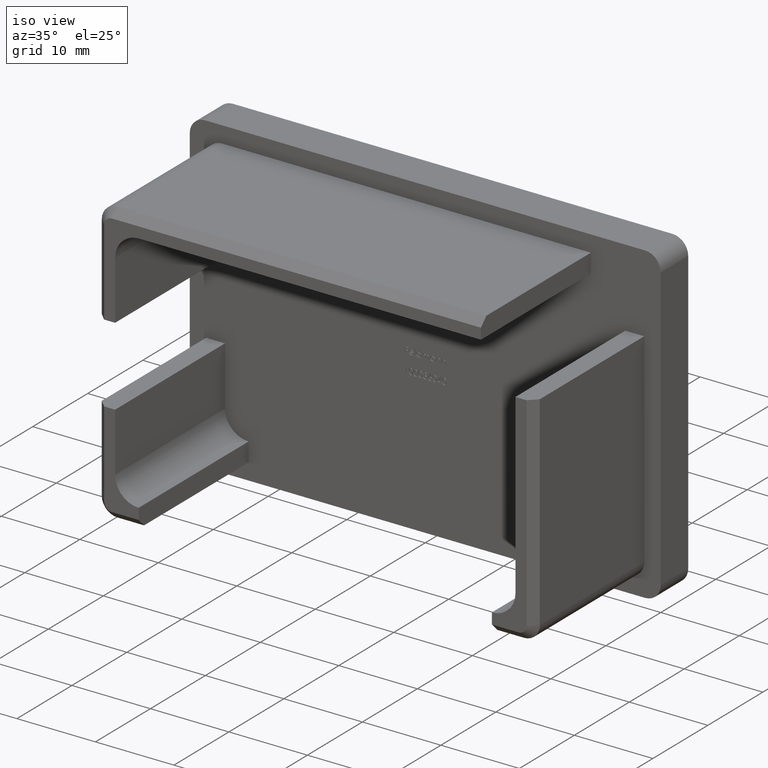
[diagram: clean part render]
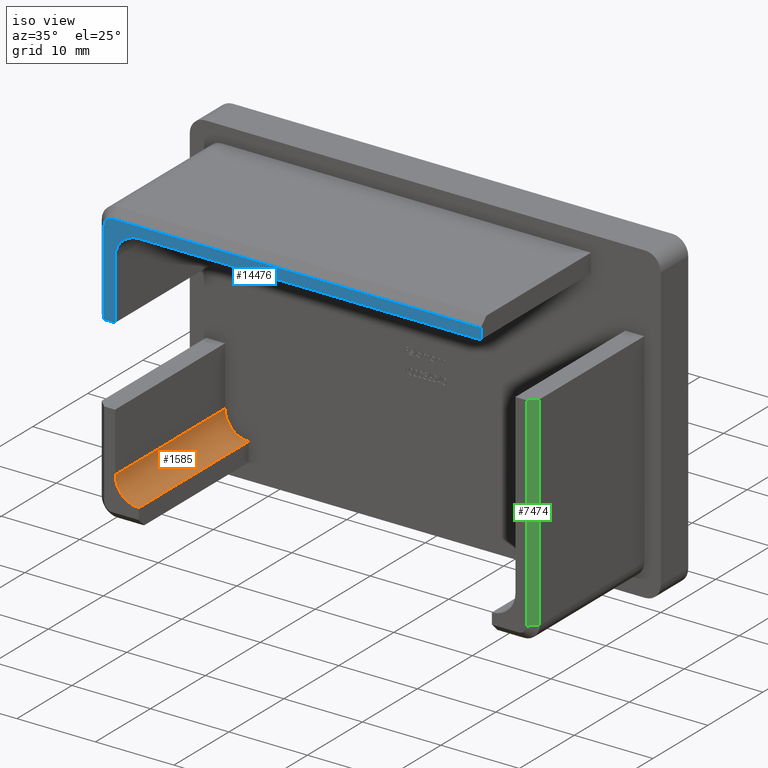
[diagram: same view with three faces highlighted in distinct colors, each labeled with its STEP entity id]
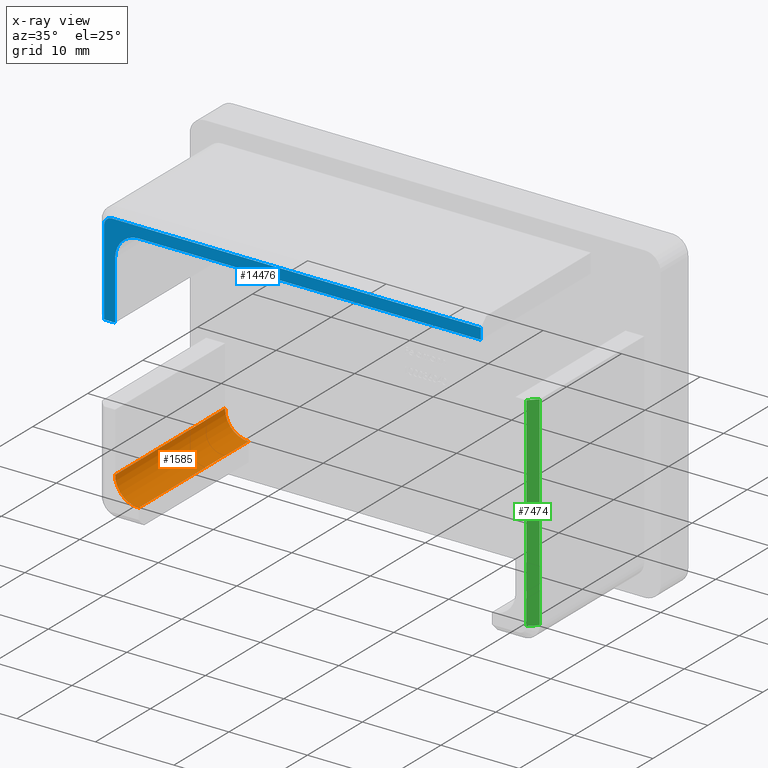
[diagram: x-ray of the same camera — body ghosted, the three highlighted faces saturated]
A machine part, iso view with three faces highlighted in distinct colors.
The next image is the same camera in x-ray (body ghosted, the three faces saturated) — at least one of them is partly hidden behind the body in this view.
Their STEP definitions:

[orange] entity #1585 — the highlighted cylindrical surface (edge-blend (fillet) strip) has radius 3 mm, axis along (0, -1, 0).
#919 = VERTEX_POINT ( 'NONE', #2322 ) ;
#936 = ORIENTED_EDGE ( 'NONE', *, *, #7920, .T. ) ;
#1585 = ADVANCED_FACE ( 'NONE', ( #15133 ), #3211, .F. ) ;
#1900 = AXIS2_PLACEMENT_3D ( 'NONE', #13488, #9935, #13442 ) ;
#2322 = CARTESIAN_POINT ( 'NONE',  ( -22.50000000000000000, 0.0000000000000000000, -15.50000000000000700 ) ) ;
#2651 = VECTOR ( 'NONE', #9239, 1000.000000000000000 ) ;
#2940 = DIRECTION ( 'NONE',  ( -0.0000000000000000000, 1.000000000000000000, -0.0000000000000000000 ) ) ;
#3142 = VERTEX_POINT ( 'NONE', #5018 ) ;
#3159 = AXIS2_PLACEMENT_3D ( 'NONE', #11376, #12372, #13659 ) ;
#3211 = CYLINDRICAL_SURFACE ( 'NONE', #11324, 2.999999999999999100 ) ;
#3710 = EDGE_CURVE ( 'NONE', #3142, #4677, #12547, .T. ) ;
#3783 = EDGE_LOOP ( 'NONE', ( #4156, #936, #14974, #14303 ) ) ;
#4156 = ORIENTED_EDGE ( 'NONE', *, *, #10167, .F. ) ;
#4677 = VERTEX_POINT ( 'NONE', #8477 ) ;
#5018 = CARTESIAN_POINT ( 'NONE',  ( -25.50000000000000400, -20.00000000000000000, -12.50000000000000700 ) ) ;
#7486 = CARTESIAN_POINT ( 'NONE',  ( -22.50000000000000000, -20.00000000000000000, -15.50000000000000700 ) ) ;
#7920 = EDGE_CURVE ( 'NONE', #8261, #919, #11378, .T. ) ;
#8261 = VERTEX_POINT ( 'NONE', #10594 ) ;
#8477 = CARTESIAN_POINT ( 'NONE',  ( -25.50000000000000400, 0.0000000000000000000, -12.50000000000000700 ) ) ;
#9239 = DIRECTION ( 'NONE',  ( 0.0000000000000000000, 1.000000000000000000, 0.0000000000000000000 ) ) ;
#9935 = DIRECTION ( 'NONE',  ( -0.0000000000000000000, 1.000000000000000000, 0.0000000000000000000 ) ) ;
#10167 = EDGE_CURVE ( 'NONE', #8261, #3142, #14835, .T. ) ;
#10594 = CARTESIAN_POINT ( 'NONE',  ( -22.50000000000000000, -20.00000000000000000, -15.50000000000000700 ) ) ;
#10851 = CARTESIAN_POINT ( 'NONE',  ( -22.50000000000000400, -20.00000000000000000, -12.50000000000000700 ) ) ;
#11324 = AXIS2_PLACEMENT_3D ( 'NONE', #10851, #12030, #14410 ) ;
#11376 = CARTESIAN_POINT ( 'NONE',  ( -22.50000000000000400, 0.0000000000000000000, -12.50000000000000700 ) ) ;
#11378 = LINE ( 'NONE', #7486, #14532 ) ;
#11407 = CIRCLE ( 'NONE', #3159, 2.999999999999999100 ) ;
#12030 = DIRECTION ( 'NONE',  ( 0.0000000000000000000, -1.000000000000000000, 0.0000000000000000000 ) ) ;
#12180 = EDGE_CURVE ( 'NONE', #4677, #919, #11407, .T. ) ;
#12372 = DIRECTION ( 'NONE',  ( -0.0000000000000000000, -1.000000000000000000, -0.0000000000000000000 ) ) ;
#12547 = LINE ( 'NONE', #13923, #2651 ) ;
#13442 = DIRECTION ( 'NONE',  ( 0.0000000000000000000, 0.0000000000000000000, -1.000000000000000000 ) ) ;
#13488 = CARTESIAN_POINT ( 'NONE',  ( -22.50000000000000400, -20.00000000000000000, -12.50000000000000700 ) ) ;
#13659 = DIRECTION ( 'NONE',  ( 0.0000000000000000000, 0.0000000000000000000, 1.000000000000000000 ) ) ;
#13923 = CARTESIAN_POINT ( 'NONE',  ( -25.50000000000000400, 0.0000000000000000000, -12.50000000000000700 ) ) ;
#14303 = ORIENTED_EDGE ( 'NONE', *, *, #3710, .F. ) ;
#14410 = DIRECTION ( 'NONE',  ( 0.0000000000000000000, 0.0000000000000000000, -1.000000000000000000 ) ) ;
#14532 = VECTOR ( 'NONE', #2940, 1000.000000000000000 ) ;
#14835 = CIRCLE ( 'NONE', #1900, 2.999999999999999100 ) ;
#14974 = ORIENTED_EDGE ( 'NONE', *, *, #12180, .F. ) ;
#15133 = FACE_OUTER_BOUND ( 'NONE', #3783, .T. ) ;

[blue] entity #14476 — the highlighted planar face has unit normal (0, -1, 0).
#85 = CARTESIAN_POINT ( 'NONE',  ( -25.50000000000000400, -20.00000000000000000, 4.999999999999992000 ) ) ;
#251 = LINE ( 'NONE', #2735, #12518 ) ;
#759 = FACE_OUTER_BOUND ( 'NONE', #4250, .T. ) ;
#854 = CIRCLE ( 'NONE', #10047, 2.999999999999999100 ) ;
#1066 = CARTESIAN_POINT ( 'NONE',  ( -27.89999999999999500, -20.00000000000000000, 4.999999999999992000 ) ) ;
#1079 = EDGE_CURVE ( 'NONE', #11131, #14084, #10399, .T. ) ;
#1082 = VERTEX_POINT ( 'NONE', #85 ) ;
#1210 = CARTESIAN_POINT ( 'NONE',  ( -25.50000000000000400, -20.00000000000000000, 15.50000000000000400 ) ) ;
#1222 = VERTEX_POINT ( 'NONE', #6466 ) ;
#1226 = PLANE ( 'NONE',  #6686 ) ;
#1240 = EDGE_CURVE ( 'NONE', #14084, #8741, #15003, .T. ) ;
#1325 = LINE ( 'NONE', #13305, #11206 ) ;
#1433 = EDGE_CURVE ( 'NONE', #8741, #8289, #5707, .T. ) ;
#1578 = DIRECTION ( 'NONE',  ( 0.0000000000000000000, 0.0000000000000000000, 1.000000000000000000 ) ) ;
#2237 = VECTOR ( 'NONE', #2936, 1000.000000000000000 ) ;
#2427 = EDGE_CURVE ( 'NONE', #8289, #1082, #14037, .T. ) ;
#2676 = CARTESIAN_POINT ( 'NONE',  ( -25.89999999999999900, -20.00000000000000000, 16.89999999999999500 ) ) ;
#2735 = CARTESIAN_POINT ( 'NONE',  ( 21.10000000000000100, -20.00000000000000000, 15.50000000000000400 ) ) ;
#2936 = DIRECTION ( 'NONE',  ( 5.378987522408699900E-016, 0.0000000000000000000, -1.000000000000000000 ) ) ;
#3079 = ORIENTED_EDGE ( 'NONE', *, *, #9090, .T. ) ;
#3244 = ORIENTED_EDGE ( 'NONE', *, *, #1433, .T. ) ;
#3299 = DIRECTION ( 'NONE',  ( 1.000000000000000000, 0.0000000000000000000, 0.0000000000000000000 ) ) ;
#3391 = DIRECTION ( 'NONE',  ( 0.0000000000000000000, 0.0000000000000000000, -1.000000000000000000 ) ) ;
#3575 = CARTESIAN_POINT ( 'NONE',  ( -26.89999999999998400, -20.00000000000000000, 4.999999999999992000 ) ) ;
#4250 = EDGE_LOOP ( 'NONE', ( #8994, #5105, #13999, #3244, #8037, #9481, #11651, #3079 ) ) ;
#5105 = ORIENTED_EDGE ( 'NONE', *, *, #1079, .T. ) ;
#5130 = CARTESIAN_POINT ( 'NONE',  ( -26.89999999999998800, -20.00000000000000000, 4.999999999999992900 ) ) ;
#5238 = CARTESIAN_POINT ( 'NONE',  ( -25.89999999999999900, -20.00000000000000000, 15.90000000000000400 ) ) ;
#5524 = DIRECTION ( 'NONE',  ( 0.0000000000000000000, 0.0000000000000000000, -1.000000000000000000 ) ) ;
#5707 = LINE ( 'NONE', #5130, #2237 ) ;
#5748 = DIRECTION ( 'NONE',  ( -0.0000000000000000000, 1.000000000000000000, -0.0000000000000000000 ) ) ;
#6466 = CARTESIAN_POINT ( 'NONE',  ( 21.10000000000000100, -20.00000000000000000, 15.50000000000000400 ) ) ;
#6686 = AXIS2_PLACEMENT_3D ( 'NONE', #11711, #12706, #12803 ) ;
#7976 = VECTOR ( 'NONE', #13042, 1000.000000000000000 ) ;
#8037 = ORIENTED_EDGE ( 'NONE', *, *, #2427, .T. ) ;
#8201 = CARTESIAN_POINT ( 'NONE',  ( -26.89999999999999500, -20.00000000000000000, 15.90000000000000400 ) ) ;
#8289 = VERTEX_POINT ( 'NONE', #3575 ) ;
#8317 = VECTOR ( 'NONE', #3299, 1000.000000000000000 ) ;
#8536 = EDGE_CURVE ( 'NONE', #14074, #10446, #854, .T. ) ;
#8571 = VECTOR ( 'NONE', #13138, 1000.000000000000000 ) ;
#8729 = EDGE_CURVE ( 'NONE', #1082, #14074, #12405, .T. ) ;
#8741 = VERTEX_POINT ( 'NONE', #8201 ) ;
#8994 = ORIENTED_EDGE ( 'NONE', *, *, #12097, .T. ) ;
#9090 = EDGE_CURVE ( 'NONE', #10446, #1222, #1325, .T. ) ;
#9198 = CARTESIAN_POINT ( 'NONE',  ( -22.50000000000000400, -20.00000000000000000, 12.50000000000000400 ) ) ;
#9481 = ORIENTED_EDGE ( 'NONE', *, *, #8729, .T. ) ;
#9764 = AXIS2_PLACEMENT_3D ( 'NONE', #5238, #12373, #5524 ) ;
#9806 = DIRECTION ( 'NONE',  ( 1.000000000000000000, 0.0000000000000000000, 0.0000000000000000000 ) ) ;
#10047 = AXIS2_PLACEMENT_3D ( 'NONE', #9198, #5748, #3391 ) ;
#10399 = LINE ( 'NONE', #11836, #8571 ) ;
#10446 = VERTEX_POINT ( 'NONE', #12332 ) ;
#11131 = VERTEX_POINT ( 'NONE', #13070 ) ;
#11206 = VECTOR ( 'NONE', #9806, 1000.000000000000000 ) ;
#11426 = CARTESIAN_POINT ( 'NONE',  ( -25.50000000000000400, -20.00000000000000000, 12.50000000000000400 ) ) ;
#11651 = ORIENTED_EDGE ( 'NONE', *, *, #8536, .T. ) ;
#11711 = CARTESIAN_POINT ( 'NONE',  ( 0.0000000000000000000, -20.00000000000000000, 0.0000000000000000000 ) ) ;
#11836 = CARTESIAN_POINT ( 'NONE',  ( -25.89999999999999900, -20.00000000000000000, 16.89999999999999500 ) ) ;
#12097 = EDGE_CURVE ( 'NONE', #1222, #11131, #251, .T. ) ;
#12332 = CARTESIAN_POINT ( 'NONE',  ( -22.50000000000000400, -20.00000000000000000, 15.50000000000000400 ) ) ;
#12373 = DIRECTION ( 'NONE',  ( 0.0000000000000000000, -1.000000000000000000, 0.0000000000000000000 ) ) ;
#12405 = LINE ( 'NONE', #1210, #7976 ) ;
#12518 = VECTOR ( 'NONE', #1578, 1000.000000000000000 ) ;
#12706 = DIRECTION ( 'NONE',  ( 0.0000000000000000000, -1.000000000000000000, 0.0000000000000000000 ) ) ;
#12803 = DIRECTION ( 'NONE',  ( 0.0000000000000000000, -0.0000000000000000000, -1.000000000000000000 ) ) ;
#13042 = DIRECTION ( 'NONE',  ( -0.0000000000000000000, -0.0000000000000000000, 1.000000000000000000 ) ) ;
#13070 = CARTESIAN_POINT ( 'NONE',  ( 21.10000000000000100, -20.00000000000000000, 16.89999999999999500 ) ) ;
#13138 = DIRECTION ( 'NONE',  ( -1.000000000000000000, 0.0000000000000000000, 0.0000000000000000000 ) ) ;
#13305 = CARTESIAN_POINT ( 'NONE',  ( -25.50000000000000400, -20.00000000000000000, 15.50000000000000400 ) ) ;
#13999 = ORIENTED_EDGE ( 'NONE', *, *, #1240, .T. ) ;
#14037 = LINE ( 'NONE', #1066, #8317 ) ;
#14074 = VERTEX_POINT ( 'NONE', #11426 ) ;
#14084 = VERTEX_POINT ( 'NONE', #2676 ) ;
#14476 = ADVANCED_FACE ( 'NONE', ( #759 ), #1226, .T. ) ;
#15003 = CIRCLE ( 'NONE', #9764, 0.9999999999999904500 ) ;

[green] entity #7474 — the highlighted planar face has unit normal (-0.7071, 0.7071, 0).
#82 = EDGE_CURVE ( 'NONE', #9210, #3464, #725, .T. ) ;
#319 = EDGE_CURVE ( 'NONE', #4984, #9210, #5810, .T. ) ;
#524 = ORIENTED_EDGE ( 'NONE', *, *, #11260, .T. ) ;
#719 = DIRECTION ( 'NONE',  ( -0.7071067811865475700, 0.7071067811865475700, 0.0000000000000000000 ) ) ;
#725 = LINE ( 'NONE', #10832, #12801 ) ;
#816 = CARTESIAN_POINT ( 'NONE',  ( 26.90000000000001300, -20.00000000000000000, 0.0000000000000000000 ) ) ;
#1343 = AXIS2_PLACEMENT_3D ( 'NONE', #10077, #719, #6588 ) ;
#2693 = DIRECTION ( 'NONE',  ( 0.7071067811865474600, 0.7071067811865474600, -0.0000000000000000000 ) ) ;
#3224 = ORIENTED_EDGE ( 'NONE', *, *, #82, .F. ) ;
#3454 = CARTESIAN_POINT ( 'NONE',  ( 27.90000000000000200, -19.00000000000001400, 10.09999999999999400 ) ) ;
#3464 = VERTEX_POINT ( 'NONE', #3454 ) ;
#4040 = VERTEX_POINT ( 'NONE', #13851 ) ;
#4601 = DIRECTION ( 'NONE',  ( 0.7071067811865474600, 0.7071067811865474600, 0.0000000000000000000 ) ) ;
#4984 = VERTEX_POINT ( 'NONE', #7064 ) ;
#5810 = LINE ( 'NONE', #816, #9307 ) ;
#6215 = CARTESIAN_POINT ( 'NONE',  ( 27.90000000000000200, -19.00000000000001400, 10.09999999999999400 ) ) ;
#6588 = DIRECTION ( 'NONE',  ( 0.0000000000000000000, 0.0000000000000000000, 1.000000000000000000 ) ) ;
#6900 = CARTESIAN_POINT ( 'NONE',  ( 26.90000000000001300, -20.00000000000000000, -15.90000000000000700 ) ) ;
#7064 = CARTESIAN_POINT ( 'NONE',  ( 26.90000000000001300, -20.00000000000000000, -15.90000000000000700 ) ) ;
#7474 = ADVANCED_FACE ( 'NONE', ( #13974 ), #13779, .F. ) ;
#8678 = CARTESIAN_POINT ( 'NONE',  ( 26.90000000000001300, -20.00000000000000000, 10.09999999999999400 ) ) ;
#8955 = LINE ( 'NONE', #6215, #9683 ) ;
#9210 = VERTEX_POINT ( 'NONE', #8678 ) ;
#9307 = VECTOR ( 'NONE', #10117, 1000.000000000000000 ) ;
#9351 = ORIENTED_EDGE ( 'NONE', *, *, #10298, .F. ) ;
#9683 = VECTOR ( 'NONE', #14439, 1000.000000000000000 ) ;
#10077 = CARTESIAN_POINT ( 'NONE',  ( 26.90000000000001300, -20.00000000000000000, 0.0000000000000000000 ) ) ;
#10117 = DIRECTION ( 'NONE',  ( 0.0000000000000000000, 0.0000000000000000000, 1.000000000000000000 ) ) ;
#10298 = EDGE_CURVE ( 'NONE', #3464, #4040, #8955, .T. ) ;
#10832 = CARTESIAN_POINT ( 'NONE',  ( 26.90000000000001300, -20.00000000000000000, 10.09999999999999400 ) ) ;
#11260 = EDGE_CURVE ( 'NONE', #4984, #4040, #13463, .T. ) ;
#12162 = VECTOR ( 'NONE', #4601, 1000.000000000000100 ) ;
#12295 = ORIENTED_EDGE ( 'NONE', *, *, #319, .F. ) ;
#12801 = VECTOR ( 'NONE', #2693, 1000.000000000000100 ) ;
#13463 = LINE ( 'NONE', #6900, #12162 ) ;
#13779 = PLANE ( 'NONE',  #1343 ) ;
#13851 = CARTESIAN_POINT ( 'NONE',  ( 27.90000000000000200, -19.00000000000001400, -15.90000000000000700 ) ) ;
#13974 = FACE_OUTER_BOUND ( 'NONE', #14668, .T. ) ;
#14439 = DIRECTION ( 'NONE',  ( 0.0000000000000000000, 0.0000000000000000000, -1.000000000000000000 ) ) ;
#14668 = EDGE_LOOP ( 'NONE', ( #524, #9351, #3224, #12295 ) ) ;